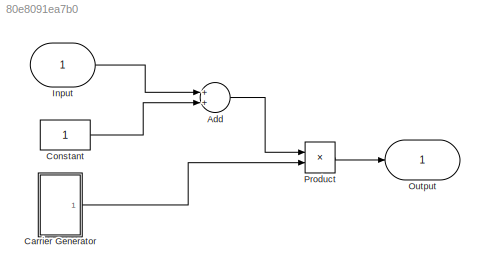
MODEL slx_80e8091ea7b0
KIND model
BLOCK [Sum] Add
  InputSameDT = off
  OutDataTypeStr = Inherit: Inherit via internal rule
  Ports = [2, 1]
  SaturateOnIntegerOverflow = off
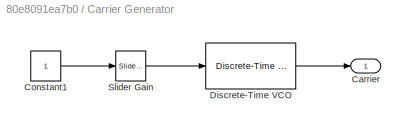
BLOCK [SubSystem] Carrier Generator
  Ports = [0, 1]
  RequestExecContextInheritance = off
BLOCK [Outport] Carrier Generator/Carrier
  IconDisplay = Port number
BLOCK [Constant] Carrier Generator/Constant1
BLOCK [Reference] Carrier Generator/Discrete-Time VCO  REF=commsynccomp2/Discrete-Time
VCO
  Ac = 1
  Fc = 0
  Kc = 1000
  Ph = 0
  Ports = [1, 1]
  SourceBlock = commsynccomp2/Discrete-Time\nVCO
  SourceType = Discrete-Time VCO
  ts = 1/5000000
BLOCK [Reference] Carrier Generator/Slider Gain  REF=simulink/Math
Operations/Slider
Gain
  Ports = [1, 1]
  SourceBlock = simulink/Math\nOperations/Slider\nGain
  SourceType = Slider Gain
  gain = 792
  high = 1605
  low = 550
BLOCK [Constant] Constant
BLOCK [Inport] Input
  IconDisplay = Port number
BLOCK [Outport] Output
  IconDisplay = Port number
BLOCK [Product] Product
  InputSameDT = off
  OutDataTypeStr = Inherit: Inherit via internal rule
  Ports = [2, 1]
  RndMeth = Floor
  SaturateOnIntegerOverflow = off
LINE Add:1 -> Product:1
LINE Carrier Generator/Constant1:1 -> Carrier Generator/Slider Gain:1
LINE Carrier Generator/Discrete-Time VCO:1 -> Carrier Generator/Carrier:1
LINE Carrier Generator/Slider Gain:1 -> Carrier Generator/Discrete-Time VCO:1
LINE Carrier Generator:1 -> Product:2
LINE Constant:1 -> Add:2
LINE Input:1 -> Add:1
LINE Product:1 -> Output:1
